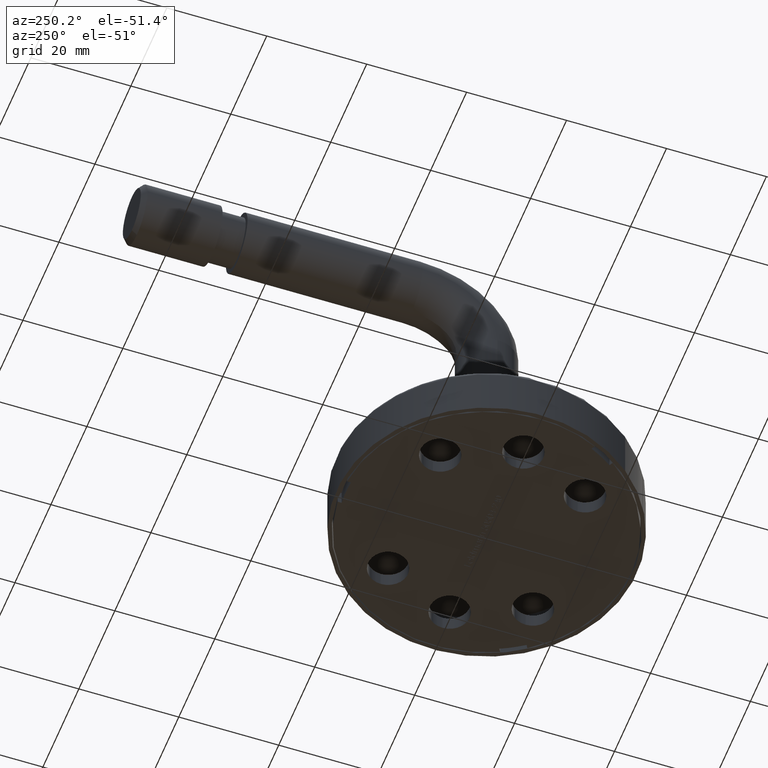
[diagram: clean part render]
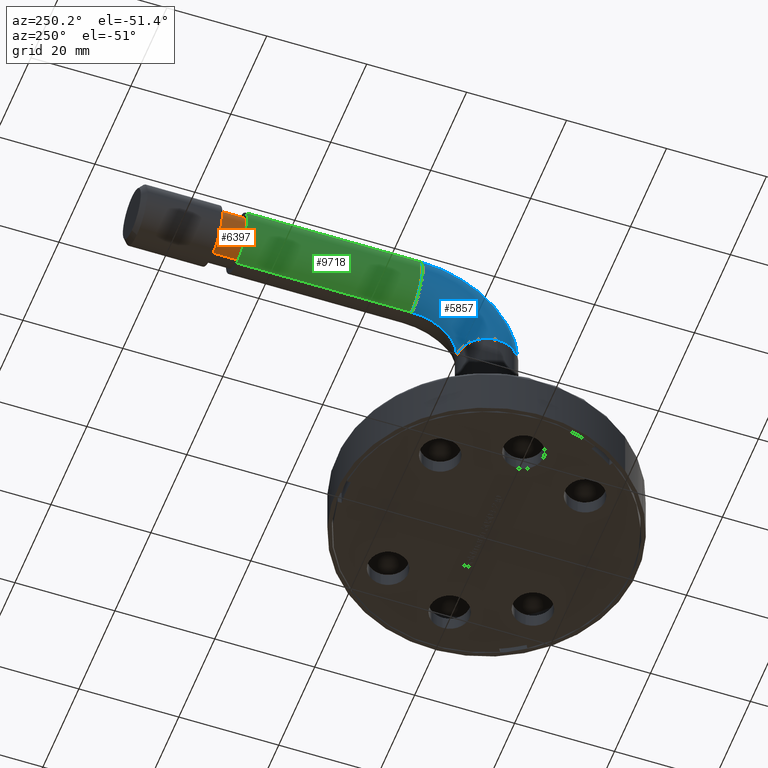
[diagram: same view with three faces highlighted in distinct colors, each labeled with its STEP entity id]
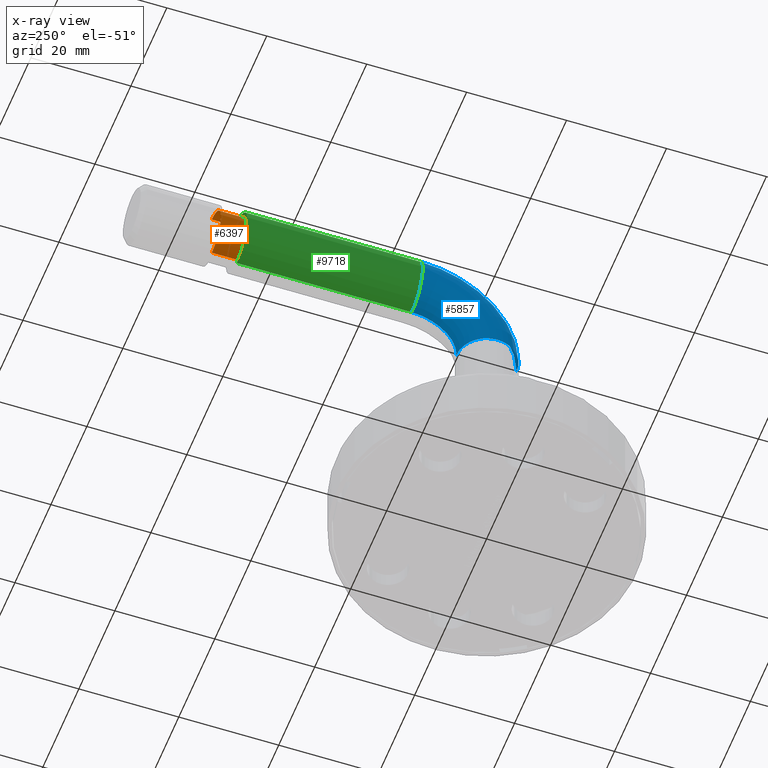
[diagram: x-ray of the same camera — body ghosted, the three highlighted faces saturated]
A machine part, auxiliary view with three faces highlighted in distinct colors.
The next image is the same camera in x-ray (body ghosted, the three faces saturated) — at least one of them is partly hidden behind the body in this view.
Their STEP definitions:

[orange] entity #6397 — the highlighted cylindrical surface (edge-blend (fillet) strip) has radius 5 mm, axis along (0, 1, -0).
#466 = CARTESIAN_POINT ( 'NONE',  ( 0.000000000000000000, 49.99999999999997868, -66.00000000000000000 ) ) ;
#512 = DIRECTION ( 'NONE',  ( -0.000000000000000000, 1.000000000000000000, -0.000000000000000000 ) ) ;
#887 = CYLINDRICAL_SURFACE ( 'NONE', #5400, 5.000000000000004441 ) ;
#1103 = LINE ( 'NONE', #6961, #8063 ) ;
#1422 = CIRCLE ( 'NONE', #8459, 5.000000000000004441 ) ;
#1643 = VERTEX_POINT ( 'NONE', #12939 ) ;
#1882 = VERTEX_POINT ( 'NONE', #7894 ) ;
#1983 = FACE_OUTER_BOUND ( 'NONE', #11836, .T. ) ;
#2670 = ORIENTED_EDGE ( 'NONE', *, *, #13306, .T. ) ;
#3359 = DIRECTION ( 'NONE',  ( 0.000000000000000000, 0.000000000000000000, 1.000000000000000000 ) ) ;
#3492 = VERTEX_POINT ( 'NONE', #6822 ) ;
#3650 = CARTESIAN_POINT ( 'NONE',  ( 0.000000000000000000, 49.99999999999997868, -66.00000000000000000 ) ) ;
#3708 = DIRECTION ( 'NONE',  ( 0.000000000000000000, 0.000000000000000000, 1.000000000000000000 ) ) ;
#4208 = ORIENTED_EDGE ( 'NONE', *, *, #10946, .F. ) ;
#4785 = DIRECTION ( 'NONE',  ( 0.000000000000000000, 1.000000000000000000, 0.000000000000000000 ) ) ;
#5118 = ORIENTED_EDGE ( 'NONE', *, *, #14825, .F. ) ;
#5127 = LINE ( 'NONE', #13622, #11023 ) ;
#5400 = AXIS2_PLACEMENT_3D ( 'NONE', #466, #512, #14588 ) ;
#5958 = CARTESIAN_POINT ( 'NONE',  ( 0.000000000000000000, 54.99999999999997868, -61.00000000000000000 ) ) ;
#6397 = ADVANCED_FACE ( 'NONE', ( #1983 ), #887, .T. ) ;
#6788 = DIRECTION ( 'NONE',  ( 0.000000000000000000, 1.000000000000000000, 0.000000000000000000 ) ) ;
#6822 = CARTESIAN_POINT ( 'NONE',  ( 6.123233995736764310E-16, 49.99999999999997868, -71.00000000000001421 ) ) ;
#6961 = CARTESIAN_POINT ( 'NONE',  ( 6.123233995736768255E-16, 49.99999999999997868, -71.00000000000001421 ) ) ;
#7058 = DIRECTION ( 'NONE',  ( -0.000000000000000000, 1.000000000000000000, -0.000000000000000000 ) ) ;
#7894 = CARTESIAN_POINT ( 'NONE',  ( 0.000000000000000000, 49.99999999999997868, -61.00000000000000000 ) ) ;
#8063 = VECTOR ( 'NONE', #7058, 1000.000000000000000 ) ;
#8138 = EDGE_CURVE ( 'NONE', #1882, #3492, #1422, .T. ) ;
#8459 = AXIS2_PLACEMENT_3D ( 'NONE', #3650, #4785, #3708 ) ;
#8818 = AXIS2_PLACEMENT_3D ( 'NONE', #10390, #6788, #3359 ) ;
#9351 = VERTEX_POINT ( 'NONE', #5958 ) ;
#10390 = CARTESIAN_POINT ( 'NONE',  ( 0.000000000000000000, 54.99999999999997868, -66.00000000000000000 ) ) ;
#10946 = EDGE_CURVE ( 'NONE', #9351, #1643, #13848, .T. ) ;
#11023 = VECTOR ( 'NONE', #13677, 1000.000000000000000 ) ;
#11836 = EDGE_LOOP ( 'NONE', ( #14507, #2670, #4208, #5118 ) ) ;
#12939 = CARTESIAN_POINT ( 'NONE',  ( 6.123233995736764310E-16, 54.99999999999997868, -71.00000000000001421 ) ) ;
#13306 = EDGE_CURVE ( 'NONE', #3492, #1643, #1103, .T. ) ;
#13622 = CARTESIAN_POINT ( 'NONE',  ( 0.000000000000000000, 49.99999999999997868, -61.00000000000000000 ) ) ;
#13677 = DIRECTION ( 'NONE',  ( -0.000000000000000000, 1.000000000000000000, -0.000000000000000000 ) ) ;
#13848 = CIRCLE ( 'NONE', #8818, 5.000000000000004441 ) ;
#14507 = ORIENTED_EDGE ( 'NONE', *, *, #8138, .T. ) ;
#14588 = DIRECTION ( 'NONE',  ( 0.000000000000000000, 0.000000000000000000, 1.000000000000000000 ) ) ;
#14825 = EDGE_CURVE ( 'NONE', #1882, #9351, #5127, .T. ) ;

[blue] entity #5857 — the highlighted toroidal blend (fillet) surface has major radius 15 mm and minor (blend) radius 6 mm.
#151 = FACE_OUTER_BOUND ( 'NONE', #2223, .T. ) ;
#283 = DIRECTION ( 'NONE',  ( 1.000000000000000000, 0.000000000000000000, 0.000000000000000000 ) ) ;
#1025 = ORIENTED_EDGE ( 'NONE', *, *, #12076, .T. ) ;
#1634 = DIRECTION ( 'NONE',  ( 1.000000000000000000, 0.000000000000000000, 0.000000000000000000 ) ) ;
#2223 = EDGE_LOOP ( 'NONE', ( #5483, #1025, #9850, #9806, #4800 ) ) ;
#2496 = DIRECTION ( 'NONE',  ( 0.000000000000000000, 0.000000000000000000, -1.000000000000000000 ) ) ;
#2597 = CARTESIAN_POINT ( 'NONE',  ( 0.000000000000000000, 15.00000000000000000, -51.00000000000000711 ) ) ;
#3444 = VERTEX_POINT ( 'NONE', #9130 ) ;
#3641 = TOROIDAL_SURFACE ( 'NONE', #7536, 15.00000000000000000, 6.000000000000000888 ) ;
#4060 = AXIS2_PLACEMENT_3D ( 'NONE', #5230, #13494, #10126 ) ;
#4122 = DIRECTION ( 'NONE',  ( 1.000000000000000000, 0.000000000000000000, 0.000000000000000000 ) ) ;
#4187 = VERTEX_POINT ( 'NONE', #12516 ) ;
#4277 = DIRECTION ( 'NONE',  ( 1.000000000000000000, 0.000000000000000000, 0.000000000000000000 ) ) ;
#4316 = CARTESIAN_POINT ( 'NONE',  ( -7.347880794884120722E-16, 15.00000000000000000, -51.00000000000000711 ) ) ;
#4800 = ORIENTED_EDGE ( 'NONE', *, *, #8317, .F. ) ;
#5102 = EDGE_CURVE ( 'NONE', #13158, #13649, #7308, .T. ) ;
#5230 = CARTESIAN_POINT ( 'NONE',  ( 0.000000000000000000, 15.00000000000000000, -51.00000000000000711 ) ) ;
#5483 = ORIENTED_EDGE ( 'NONE', *, *, #11414, .F. ) ;
#5857 = ADVANCED_FACE ( 'NONE', ( #151 ), #3641, .T. ) ;
#6240 = AXIS2_PLACEMENT_3D ( 'NONE', #10981, #6302, #1634 ) ;
#6241 = CIRCLE ( 'NONE', #6240, 6.000000000000000888 ) ;
#6286 = CARTESIAN_POINT ( 'NONE',  ( 0.000000000000000000, 0.000000000000000000, -51.00000000000000711 ) ) ;
#6302 = DIRECTION ( 'NONE',  ( 0.000000000000000000, -1.000000000000000000, 0.000000000000000000 ) ) ;
#6727 = CARTESIAN_POINT ( 'NONE',  ( -7.347880794884119736E-16, 6.000000000000000888, -51.00000000000000711 ) ) ;
#7308 = CIRCLE ( 'NONE', #14586, 8.999999999999994671 ) ;
#7438 = DIRECTION ( 'NONE',  ( 1.000000000000000000, 0.000000000000000000, 0.000000000000000000 ) ) ;
#7536 = AXIS2_PLACEMENT_3D ( 'NONE', #2597, #283, #2496 ) ;
#8317 = EDGE_CURVE ( 'NONE', #3444, #13158, #9869, .T. ) ;
#8651 = CIRCLE ( 'NONE', #4060, 21.00000000000000355 ) ;
#9130 = CARTESIAN_POINT ( 'NONE',  ( 6.000000000000000888, 7.347880794884120722E-16, -51.00000000000000711 ) ) ;
#9719 = CARTESIAN_POINT ( 'NONE',  ( 0.000000000000000000, -6.000000000000001776, -51.00000000000000711 ) ) ;
#9806 = ORIENTED_EDGE ( 'NONE', *, *, #5102, .F. ) ;
#9850 = ORIENTED_EDGE ( 'NONE', *, *, #14641, .T. ) ;
#9869 = CIRCLE ( 'NONE', #13303, 6.000000000000000888 ) ;
#9980 = CARTESIAN_POINT ( 'NONE',  ( 0.000000000000000000, 0.000000000000000000, -51.00000000000000711 ) ) ;
#10126 = DIRECTION ( 'NONE',  ( 0.000000000000000000, 0.000000000000000000, -1.000000000000000000 ) ) ;
#10981 = CARTESIAN_POINT ( 'NONE',  ( 0.000000000000000000, 15.00000000000000000, -66.00000000000000000 ) ) ;
#11414 = EDGE_CURVE ( 'NONE', #14217, #3444, #14037, .T. ) ;
#12076 = EDGE_CURVE ( 'NONE', #14217, #4187, #8651, .T. ) ;
#12516 = CARTESIAN_POINT ( 'NONE',  ( 7.347880794884114806E-16, 15.00000000000000000, -72.00000000000001421 ) ) ;
#12559 = DIRECTION ( 'NONE',  ( 0.000000000000000000, 0.000000000000000000, -1.000000000000000000 ) ) ;
#13158 = VERTEX_POINT ( 'NONE', #6727 ) ;
#13303 = AXIS2_PLACEMENT_3D ( 'NONE', #9980, #14848, #4122 ) ;
#13494 = DIRECTION ( 'NONE',  ( 1.000000000000000000, 0.000000000000000000, 0.000000000000000000 ) ) ;
#13649 = VERTEX_POINT ( 'NONE', #14822 ) ;
#14037 = CIRCLE ( 'NONE', #14756, 6.000000000000000888 ) ;
#14217 = VERTEX_POINT ( 'NONE', #9719 ) ;
#14356 = DIRECTION ( 'NONE',  ( 0.000000000000000000, 0.000000000000000000, 1.000000000000000000 ) ) ;
#14586 = AXIS2_PLACEMENT_3D ( 'NONE', #4316, #4277, #12559 ) ;
#14641 = EDGE_CURVE ( 'NONE', #4187, #13649, #6241, .T. ) ;
#14756 = AXIS2_PLACEMENT_3D ( 'NONE', #6286, #14356, #7438 ) ;
#14822 = CARTESIAN_POINT ( 'NONE',  ( 0.000000000000000000, 15.00000000000000000, -60.00000000000000711 ) ) ;
#14848 = DIRECTION ( 'NONE',  ( 0.000000000000000000, 0.000000000000000000, 1.000000000000000000 ) ) ;

[green] entity #9718 — the highlighted cylindrical surface (edge-blend (fillet) strip) has radius 6 mm, axis along (0, 1, -0).
#1049 = CARTESIAN_POINT ( 'NONE',  ( 7.347880794884119736E-16, 49.99999999999997868, -72.00000000000001421 ) ) ;
#1309 = DIRECTION ( 'NONE',  ( 0.000000000000000000, 1.000000000000000000, 0.000000000000000000 ) ) ;
#1634 = DIRECTION ( 'NONE',  ( 1.000000000000000000, 0.000000000000000000, 0.000000000000000000 ) ) ;
#1831 = ORIENTED_EDGE ( 'NONE', *, *, #6306, .F. ) ;
#1899 = FACE_OUTER_BOUND ( 'NONE', #3209, .T. ) ;
#2169 = CARTESIAN_POINT ( 'NONE',  ( 7.347880794884120722E-16, 15.00000000000000000, -72.00000000000001421 ) ) ;
#2806 = DIRECTION ( 'NONE',  ( 0.000000000000000000, 1.000000000000000000, 0.000000000000000000 ) ) ;
#2918 = EDGE_CURVE ( 'NONE', #13649, #14161, #3691, .T. ) ;
#3209 = EDGE_LOOP ( 'NONE', ( #6554, #4136, #1831, #6629 ) ) ;
#3691 = LINE ( 'NONE', #13178, #6984 ) ;
#4050 = VECTOR ( 'NONE', #6938, 1000.000000000000000 ) ;
#4136 = ORIENTED_EDGE ( 'NONE', *, *, #13889, .T. ) ;
#4187 = VERTEX_POINT ( 'NONE', #12516 ) ;
#4378 = CIRCLE ( 'NONE', #14994, 6.000000000000005329 ) ;
#4940 = DIRECTION ( 'NONE',  ( 0.000000000000000000, 1.000000000000000000, 0.000000000000000000 ) ) ;
#5208 = DIRECTION ( 'NONE',  ( 0.000000000000000000, 0.000000000000000000, 1.000000000000000000 ) ) ;
#5664 = LINE ( 'NONE', #2169, #4050 ) ;
#6145 = CARTESIAN_POINT ( 'NONE',  ( 0.000000000000000000, 15.00000000000000000, -66.00000000000000000 ) ) ;
#6240 = AXIS2_PLACEMENT_3D ( 'NONE', #10981, #6302, #1634 ) ;
#6241 = CIRCLE ( 'NONE', #6240, 6.000000000000000888 ) ;
#6302 = DIRECTION ( 'NONE',  ( 0.000000000000000000, -1.000000000000000000, 0.000000000000000000 ) ) ;
#6306 = EDGE_CURVE ( 'NONE', #14161, #9909, #4378, .T. ) ;
#6554 = ORIENTED_EDGE ( 'NONE', *, *, #14641, .F. ) ;
#6629 = ORIENTED_EDGE ( 'NONE', *, *, #2918, .F. ) ;
#6938 = DIRECTION ( 'NONE',  ( 0.000000000000000000, 1.000000000000000000, 0.000000000000000000 ) ) ;
#6984 = VECTOR ( 'NONE', #4940, 1000.000000000000000 ) ;
#9671 = CARTESIAN_POINT ( 'NONE',  ( 0.000000000000000000, 49.99999999999997868, -66.00000000000000000 ) ) ;
#9718 = ADVANCED_FACE ( 'NONE', ( #1899 ), #11464, .T. ) ;
#9909 = VERTEX_POINT ( 'NONE', #1049 ) ;
#10981 = CARTESIAN_POINT ( 'NONE',  ( 0.000000000000000000, 15.00000000000000000, -66.00000000000000000 ) ) ;
#11464 = CYLINDRICAL_SURFACE ( 'NONE', #13773, 5.999999999999998224 ) ;
#12516 = CARTESIAN_POINT ( 'NONE',  ( 7.347880794884114806E-16, 15.00000000000000000, -72.00000000000001421 ) ) ;
#13134 = CARTESIAN_POINT ( 'NONE',  ( 0.000000000000000000, 49.99999999999997868, -60.00000000000000000 ) ) ;
#13175 = DIRECTION ( 'NONE',  ( 0.000000000000000000, 0.000000000000000000, 1.000000000000000000 ) ) ;
#13178 = CARTESIAN_POINT ( 'NONE',  ( 0.000000000000000000, 15.00000000000000000, -60.00000000000000711 ) ) ;
#13649 = VERTEX_POINT ( 'NONE', #14822 ) ;
#13773 = AXIS2_PLACEMENT_3D ( 'NONE', #6145, #2806, #5208 ) ;
#13889 = EDGE_CURVE ( 'NONE', #4187, #9909, #5664, .T. ) ;
#14161 = VERTEX_POINT ( 'NONE', #13134 ) ;
#14641 = EDGE_CURVE ( 'NONE', #4187, #13649, #6241, .T. ) ;
#14822 = CARTESIAN_POINT ( 'NONE',  ( 0.000000000000000000, 15.00000000000000000, -60.00000000000000711 ) ) ;
#14994 = AXIS2_PLACEMENT_3D ( 'NONE', #9671, #1309, #13175 ) ;